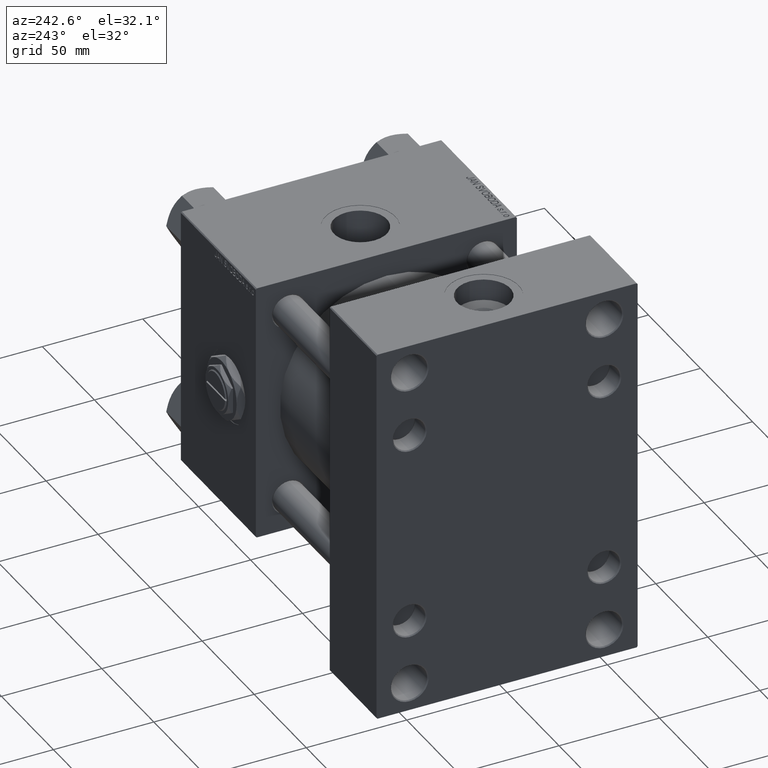
[diagram: clean part render]
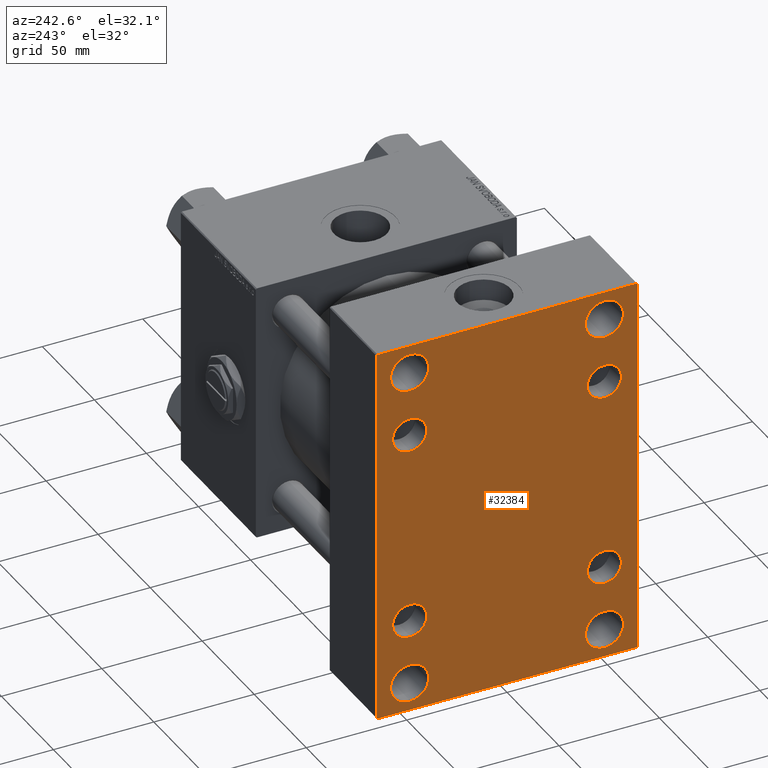
[diagram: same view with one face highlighted and labeled with its STEP entity id]
A machine part, auxiliary view. The second image highlights one B-rep face of the part: STEP entity #32384.
In plain terms, the highlighted planar face has unit normal (-1, 0, 0).
Its self-contained STEP definition (entity closure, byte-faithful):
#185 = CARTESIAN_POINT ( 'NONE',  ( 0.000000000000000000, 65.00000000000002842, 94.99999999999997158 ) ) ;
#363 = DIRECTION ( 'NONE',  ( 0.000000000000000000, 0.000000000000000000, 1.000000000000000000 ) ) ;
#489 = CIRCLE ( 'NONE', #26607, 9.499999999999980460 ) ;
#565 = ORIENTED_EDGE ( 'NONE', *, *, #20134, .T. ) ;
#930 = EDGE_CURVE ( 'NONE', #46478, #33347, #22520, .T. ) ;
#1027 = DIRECTION ( 'NONE',  ( 0.000000000000000000, 0.000000000000000000, 1.000000000000000000 ) ) ;
#1392 = ORIENTED_EDGE ( 'NONE', *, *, #19822, .T. ) ;
#1428 = EDGE_CURVE ( 'NONE', #36486, #1473, #40573, .T. ) ;
#1473 = VERTEX_POINT ( 'NONE', #28185 ) ;
#1508 = CIRCLE ( 'NONE', #15005, 9.499999999999980460 ) ;
#1533 = LINE ( 'NONE', #18171, #8628 ) ;
#1866 = CARTESIAN_POINT ( 'NONE',  ( 0.000000000000000000, 79.75000000000002842, -79.75000000000002842 ) ) ;
#1981 = VERTEX_POINT ( 'NONE', #20091 ) ;
#2018 = DIRECTION ( 'NONE',  ( 0.000000000000000000, 0.000000000000000000, 1.000000000000000000 ) ) ;
#3330 = AXIS2_PLACEMENT_3D ( 'NONE', #37043, #4813, #41006 ) ;
#3518 = DIRECTION ( 'NONE',  ( 0.000000000000000000, 0.000000000000000000, 1.000000000000000000 ) ) ;
#3522 = EDGE_CURVE ( 'NONE', #33347, #46478, #1508, .T. ) ;
#3664 = VECTOR ( 'NONE', #6599, 1000.000000000000114 ) ;
#3679 = DIRECTION ( 'NONE',  ( 0.000000000000000000, 0.7071067811865672237, -0.7071067811865279218 ) ) ;
#4051 = EDGE_CURVE ( 'NONE', #33290, #14034, #13338, .T. ) ;
#4495 = LINE ( 'NONE', #12951, #36708 ) ;
#4694 = AXIS2_PLACEMENT_3D ( 'NONE', #32401, #51734, #7606 ) ;
#4733 = FACE_BOUND ( 'NONE', #32193, .T. ) ;
#4813 = DIRECTION ( 'NONE',  ( 1.000000000000000000, -0.000000000000000000, 0.000000000000000000 ) ) ;
#5339 = CARTESIAN_POINT ( 'NONE',  ( 0.000000000000000000, -64.99999999999998579, 94.49999999999992895 ) ) ;
#5740 = DIRECTION ( 'NONE',  ( 0.000000000000000000, -1.000000000000000000, -4.270088556250601699E-16 ) ) ;
#5950 = DIRECTION ( 'NONE',  ( 1.000000000000000000, -0.000000000000000000, 0.000000000000000000 ) ) ;
#6024 = CIRCLE ( 'NONE', #19565, 9.499999999999980460 ) ;
#6330 = CARTESIAN_POINT ( 'NONE',  ( 0.000000000000000000, -48.50000000000000000, 81.00000000000000000 ) ) ;
#6355 = AXIS2_PLACEMENT_3D ( 'NONE', #23343, #44900, #12411 ) ;
#6599 = DIRECTION ( 'NONE',  ( -0.000000000000000000, -0.7071067811865474617, -0.7071067811865474617 ) ) ;
#6605 = CARTESIAN_POINT ( 'NONE',  ( 0.000000000000000000, -64.99999999999998579, -94.50000000000004263 ) ) ;
#6880 = DIRECTION ( 'NONE',  ( 0.000000000000000000, 0.000000000000000000, -1.000000000000000000 ) ) ;
#7292 = ORIENTED_EDGE ( 'NONE', *, *, #20575, .T. ) ;
#7606 = DIRECTION ( 'NONE',  ( 0.000000000000000000, 0.000000000000000000, 1.000000000000000000 ) ) ;
#7721 = CARTESIAN_POINT ( 'NONE',  ( 0.000000000000000000, 48.50000000000000000, -71.50000000000004263 ) ) ;
#8528 = DIRECTION ( 'NONE',  ( 0.000000000000000000, 0.000000000000000000, 1.000000000000000000 ) ) ;
#8604 = CIRCLE ( 'NONE', #48295, 8.499999999999980460 ) ;
#8628 = VECTOR ( 'NONE', #5740, 1000.000000000000000 ) ;
#8716 = FACE_BOUND ( 'NONE', #8766, .T. ) ;
#8766 = EDGE_LOOP ( 'NONE', ( #32055, #9139 ) ) ;
#9139 = ORIENTED_EDGE ( 'NONE', *, *, #33557, .T. ) ;
#9430 = EDGE_CURVE ( 'NONE', #39601, #43829, #48829, .T. ) ;
#10617 = CARTESIAN_POINT ( 'NONE',  ( 0.000000000000000000, -64.49999999999988631, -95.00000000000008527 ) ) ;
#10740 = ORIENTED_EDGE ( 'NONE', *, *, #36332, .T. ) ;
#11408 = CARTESIAN_POINT ( 'NONE',  ( 0.000000000000000000, -48.50000000000000000, -71.50000000000004263 ) ) ;
#11544 = AXIS2_PLACEMENT_3D ( 'NONE', #18550, #41784, #42567 ) ;
#11898 = EDGE_CURVE ( 'NONE', #29402, #31997, #26108, .T. ) ;
#12029 = VERTEX_POINT ( 'NONE', #38073 ) ;
#12198 = ORIENTED_EDGE ( 'NONE', *, *, #11898, .T. ) ;
#12411 = DIRECTION ( 'NONE',  ( -0.000000000000000000, 0.000000000000000000, 1.000000000000000000 ) ) ;
#12474 = ORIENTED_EDGE ( 'NONE', *, *, #20645, .T. ) ;
#12673 = CIRCLE ( 'NONE', #42194, 9.499999999999980460 ) ;
#12925 = PLANE ( 'NONE',  #6355 ) ;
#12945 = VERTEX_POINT ( 'NONE', #10617 ) ;
#12951 = CARTESIAN_POINT ( 'NONE',  ( 0.000000000000000000, 65.00000000000002842, 94.99999999999997158 ) ) ;
#13177 = CARTESIAN_POINT ( 'NONE',  ( 0.000000000000000000, -48.50000000000000000, 90.49999999999998579 ) ) ;
#13338 = CIRCLE ( 'NONE', #15893, 9.499999999999980460 ) ;
#13359 = DIRECTION ( 'NONE',  ( 0.000000000000000000, 0.000000000000000000, 1.000000000000000000 ) ) ;
#13674 = ORIENTED_EDGE ( 'NONE', *, *, #930, .T. ) ;
#13973 = VECTOR ( 'NONE', #3679, 1000.000000000000000 ) ;
#14034 = VERTEX_POINT ( 'NONE', #37410 ) ;
#14117 = ORIENTED_EDGE ( 'NONE', *, *, #17013, .T. ) ;
#14239 = CARTESIAN_POINT ( 'NONE',  ( 0.000000000000000000, 48.45000000000000995, -56.94999999999999574 ) ) ;
#14478 = AXIS2_PLACEMENT_3D ( 'NONE', #45949, #30857, #26904 ) ;
#15005 = AXIS2_PLACEMENT_3D ( 'NONE', #34128, #18822, #30172 ) ;
#15184 = ORIENTED_EDGE ( 'NONE', *, *, #16811, .F. ) ;
#15356 = AXIS2_PLACEMENT_3D ( 'NONE', #24387, #20427, #8528 ) ;
#15401 = FACE_BOUND ( 'NONE', #41085, .T. ) ;
#15427 = VECTOR ( 'NONE', #23919, 1000.000000000000000 ) ;
#15893 = AXIS2_PLACEMENT_3D ( 'NONE', #36672, #16878, #1027 ) ;
#16466 = DIRECTION ( 'NONE',  ( 1.000000000000000000, -0.000000000000000000, 0.000000000000000000 ) ) ;
#16811 = EDGE_CURVE ( 'NONE', #22195, #48666, #47860, .T. ) ;
#16878 = DIRECTION ( 'NONE',  ( 1.000000000000000000, -0.000000000000000000, 0.000000000000000000 ) ) ;
#17013 = EDGE_CURVE ( 'NONE', #37407, #1981, #12673, .T. ) ;
#17476 = AXIS2_PLACEMENT_3D ( 'NONE', #6330, #30116, #22456 ) ;
#17605 = CARTESIAN_POINT ( 'NONE',  ( 0.000000000000000000, 48.45000000000000995, -48.45000000000001705 ) ) ;
#17807 = VERTEX_POINT ( 'NONE', #40173 ) ;
#18171 = CARTESIAN_POINT ( 'NONE',  ( 0.000000000000000000, 65.00000000000002842, -95.00000000000002842 ) ) ;
#18550 = CARTESIAN_POINT ( 'NONE',  ( 0.000000000000000000, 48.50000000000000000, -81.00000000000001421 ) ) ;
#18822 = DIRECTION ( 'NONE',  ( 1.000000000000000000, -0.000000000000000000, 0.000000000000000000 ) ) ;
#19396 = CARTESIAN_POINT ( 'NONE',  ( 0.000000000000000000, -48.44999999999999574, -48.45000000000003126 ) ) ;
#19565 = AXIS2_PLACEMENT_3D ( 'NONE', #30277, #21841, #2018 ) ;
#19658 = DIRECTION ( 'NONE',  ( 1.000000000000000000, -0.000000000000000000, 0.000000000000000000 ) ) ;
#19822 = EDGE_CURVE ( 'NONE', #12945, #48666, #32740, .T. ) ;
#19931 = EDGE_CURVE ( 'NONE', #32847, #17807, #45713, .T. ) ;
#20016 = VECTOR ( 'NONE', #24233, 1000.000000000000000 ) ;
#20091 = CARTESIAN_POINT ( 'NONE',  ( 0.000000000000000000, 48.50000000000000000, -90.50000000000000000 ) ) ;
#20134 = EDGE_CURVE ( 'NONE', #50395, #22084, #6024, .T. ) ;
#20427 = DIRECTION ( 'NONE',  ( 1.000000000000000000, -0.000000000000000000, 0.000000000000000000 ) ) ;
#20575 = EDGE_CURVE ( 'NONE', #17807, #32847, #8604, .T. ) ;
#20645 = EDGE_CURVE ( 'NONE', #43829, #39601, #32238, .T. ) ;
#20857 = CARTESIAN_POINT ( 'NONE',  ( 0.000000000000000000, 48.45000000000000995, 39.95000000000003126 ) ) ;
#20869 = FACE_BOUND ( 'NONE', #34976, .T. ) ;
#21479 = CARTESIAN_POINT ( 'NONE',  ( 0.000000000000000000, -48.50000000000000000, 71.50000000000002842 ) ) ;
#21841 = DIRECTION ( 'NONE',  ( 1.000000000000000000, -0.000000000000000000, 0.000000000000000000 ) ) ;
#22084 = VERTEX_POINT ( 'NONE', #39464 ) ;
#22195 = VERTEX_POINT ( 'NONE', #5339 ) ;
#22456 = DIRECTION ( 'NONE',  ( 0.000000000000000000, 0.000000000000000000, 1.000000000000000000 ) ) ;
#22520 = CIRCLE ( 'NONE', #17476, 9.499999999999980460 ) ;
#22977 = CARTESIAN_POINT ( 'NONE',  ( 0.000000000000000000, 79.74999999999818101, 79.75000000000261480 ) ) ;
#23077 = DIRECTION ( 'NONE',  ( 0.000000000000000000, 0.000000000000000000, 1.000000000000000000 ) ) ;
#23343 = CARTESIAN_POINT ( 'NONE',  ( 0.000000000000000000, 0.000000000000000000, 0.000000000000000000 ) ) ;
#23891 = CARTESIAN_POINT ( 'NONE',  ( 0.000000000000000000, -48.44999999999999574, 48.45000000000003126 ) ) ;
#23917 = AXIS2_PLACEMENT_3D ( 'NONE', #17605, #5950, #36888 ) ;
#23919 = DIRECTION ( 'NONE',  ( -0.000000000000000000, 0.7071067811865573427, 0.7071067811865378028 ) ) ;
#24233 = DIRECTION ( 'NONE',  ( 0.000000000000000000, -1.000000000000000000, -1.067522139062650425E-16 ) ) ;
#24387 = CARTESIAN_POINT ( 'NONE',  ( 0.000000000000000000, 48.45000000000000995, 48.45000000000001705 ) ) ;
#24467 = EDGE_CURVE ( 'NONE', #27285, #12029, #45986, .T. ) ;
#25161 = ORIENTED_EDGE ( 'NONE', *, *, #19931, .T. ) ;
#25243 = EDGE_LOOP ( 'NONE', ( #49395, #13674 ) ) ;
#25319 = VECTOR ( 'NONE', #6880, 1000.000000000000000 ) ;
#25349 = DIRECTION ( 'NONE',  ( 0.000000000000000000, -0.7071067811865867636, 0.7071067811865081598 ) ) ;
#25995 = CARTESIAN_POINT ( 'NONE',  ( 0.000000000000000000, -48.44999999999999574, 56.95000000000000995 ) ) ;
#26024 = AXIS2_PLACEMENT_3D ( 'NONE', #43686, #34947, #3518 ) ;
#26077 = ORIENTED_EDGE ( 'NONE', *, *, #26666, .T. ) ;
#26108 = CIRCLE ( 'NONE', #3330, 8.499999999999980460 ) ;
#26310 = CARTESIAN_POINT ( 'NONE',  ( 0.000000000000000000, -48.44999999999999574, -39.95000000000004547 ) ) ;
#26423 = ORIENTED_EDGE ( 'NONE', *, *, #36684, .T. ) ;
#26607 = AXIS2_PLACEMENT_3D ( 'NONE', #44102, #29021, #13359 ) ;
#26666 = EDGE_CURVE ( 'NONE', #22195, #1473, #45018, .T. ) ;
#26904 = DIRECTION ( 'NONE',  ( 0.000000000000000000, 0.000000000000000000, 1.000000000000000000 ) ) ;
#27285 = VERTEX_POINT ( 'NONE', #32470 ) ;
#27291 = FACE_BOUND ( 'NONE', #36685, .T. ) ;
#27375 = EDGE_LOOP ( 'NONE', ( #48981, #33679, #26423, #1392, #15184, #26077, #48078, #47828 ) ) ;
#27564 = FACE_BOUND ( 'NONE', #46357, .T. ) ;
#28042 = EDGE_CURVE ( 'NONE', #22084, #50395, #44987, .T. ) ;
#28185 = CARTESIAN_POINT ( 'NONE',  ( 0.000000000000000000, -64.49999999999994316, 94.99999999999995737 ) ) ;
#28273 = CARTESIAN_POINT ( 'NONE',  ( 0.000000000000000000, 48.50000000000000000, -81.00000000000001421 ) ) ;
#28689 = VERTEX_POINT ( 'NONE', #25995 ) ;
#29021 = DIRECTION ( 'NONE',  ( 1.000000000000000000, -0.000000000000000000, 0.000000000000000000 ) ) ;
#29094 = VERTEX_POINT ( 'NONE', #34109 ) ;
#29402 = VERTEX_POINT ( 'NONE', #14239 ) ;
#30116 = DIRECTION ( 'NONE',  ( 1.000000000000000000, -0.000000000000000000, 0.000000000000000000 ) ) ;
#30172 = DIRECTION ( 'NONE',  ( 0.000000000000000000, 0.000000000000000000, 1.000000000000000000 ) ) ;
#30277 = CARTESIAN_POINT ( 'NONE',  ( 0.000000000000000000, -48.50000000000000000, -81.00000000000001421 ) ) ;
#30857 = DIRECTION ( 'NONE',  ( 1.000000000000000000, -0.000000000000000000, 0.000000000000000000 ) ) ;
#31508 = FACE_BOUND ( 'NONE', #25243, .T. ) ;
#31572 = CARTESIAN_POINT ( 'NONE',  ( 0.000000000000000000, 48.45000000000000995, -39.95000000000003126 ) ) ;
#31997 = VERTEX_POINT ( 'NONE', #31572 ) ;
#32055 = ORIENTED_EDGE ( 'NONE', *, *, #45518, .T. ) ;
#32193 = EDGE_LOOP ( 'NONE', ( #565, #44287 ) ) ;
#32238 = CIRCLE ( 'NONE', #15356, 8.499999999999980460 ) ;
#32384 = ADVANCED_FACE ( 'NONE', ( #20869, #31508, #4733, #27291, #8716, #27564, #43405, #15401, #47379 ), #12925, .T. ) ;
#32401 = CARTESIAN_POINT ( 'NONE',  ( 0.000000000000000000, -48.44999999999999574, 48.45000000000003126 ) ) ;
#32470 = CARTESIAN_POINT ( 'NONE',  ( 0.000000000000000000, 65.00000000000002842, -94.50000000000002842 ) ) ;
#32480 = DIRECTION ( 'NONE',  ( 0.000000000000000000, 0.000000000000000000, 1.000000000000000000 ) ) ;
#32543 = DIRECTION ( 'NONE',  ( 0.000000000000000000, 0.000000000000000000, 1.000000000000000000 ) ) ;
#32740 = LINE ( 'NONE', #44903, #37253 ) ;
#32847 = VERTEX_POINT ( 'NONE', #26310 ) ;
#33290 = VERTEX_POINT ( 'NONE', #49133 ) ;
#33347 = VERTEX_POINT ( 'NONE', #13177 ) ;
#33557 = EDGE_CURVE ( 'NONE', #29094, #28689, #49450, .T. ) ;
#33679 = ORIENTED_EDGE ( 'NONE', *, *, #24467, .T. ) ;
#34109 = CARTESIAN_POINT ( 'NONE',  ( 0.000000000000000000, -48.44999999999999574, 39.95000000000004547 ) ) ;
#34128 = CARTESIAN_POINT ( 'NONE',  ( 0.000000000000000000, -48.50000000000000000, 81.00000000000000000 ) ) ;
#34947 = DIRECTION ( 'NONE',  ( 1.000000000000000000, -0.000000000000000000, 0.000000000000000000 ) ) ;
#34976 = EDGE_LOOP ( 'NONE', ( #50827, #48480 ) ) ;
#35735 = CARTESIAN_POINT ( 'NONE',  ( 0.000000000000000000, -48.50000000000000000, -81.00000000000001421 ) ) ;
#36332 = EDGE_CURVE ( 'NONE', #1981, #37407, #45292, .T. ) ;
#36486 = VERTEX_POINT ( 'NONE', #39069 ) ;
#36672 = CARTESIAN_POINT ( 'NONE',  ( 0.000000000000000000, 48.50000000000000000, 81.00000000000000000 ) ) ;
#36684 = EDGE_CURVE ( 'NONE', #12029, #12945, #1533, .T. ) ;
#36685 = EDGE_LOOP ( 'NONE', ( #14117, #10740 ) ) ;
#36708 = VECTOR ( 'NONE', #45192, 1000.000000000000000 ) ;
#36785 = AXIS2_PLACEMENT_3D ( 'NONE', #23891, #16466, #363 ) ;
#36888 = DIRECTION ( 'NONE',  ( 0.000000000000000000, 0.000000000000000000, 1.000000000000000000 ) ) ;
#37043 = CARTESIAN_POINT ( 'NONE',  ( 0.000000000000000000, 48.45000000000000995, -48.45000000000001705 ) ) ;
#37253 = VECTOR ( 'NONE', #25349, 1000.000000000000000 ) ;
#37407 = VERTEX_POINT ( 'NONE', #7721 ) ;
#37410 = CARTESIAN_POINT ( 'NONE',  ( 0.000000000000000000, 48.50000000000000000, 90.49999999999998579 ) ) ;
#37786 = ORIENTED_EDGE ( 'NONE', *, *, #39957, .T. ) ;
#38073 = CARTESIAN_POINT ( 'NONE',  ( 0.000000000000000000, 64.50000000000002842, -95.00000000000002842 ) ) ;
#38688 = VERTEX_POINT ( 'NONE', #52001 ) ;
#39069 = CARTESIAN_POINT ( 'NONE',  ( 0.000000000000000000, 64.50000000000000000, 94.99999999999997158 ) ) ;
#39314 = CIRCLE ( 'NONE', #36785, 8.499999999999980460 ) ;
#39464 = CARTESIAN_POINT ( 'NONE',  ( 0.000000000000000000, -48.50000000000000000, -90.50000000000000000 ) ) ;
#39601 = VERTEX_POINT ( 'NONE', #20857 ) ;
#39957 = EDGE_CURVE ( 'NONE', #31997, #29402, #46676, .T. ) ;
#40173 = CARTESIAN_POINT ( 'NONE',  ( 0.000000000000000000, -48.44999999999999574, -56.95000000000000995 ) ) ;
#40573 = LINE ( 'NONE', #185, #20016 ) ;
#40640 = ORIENTED_EDGE ( 'NONE', *, *, #9430, .T. ) ;
#41006 = DIRECTION ( 'NONE',  ( 0.000000000000000000, 0.000000000000000000, 1.000000000000000000 ) ) ;
#41085 = EDGE_LOOP ( 'NONE', ( #12474, #40640 ) ) ;
#41784 = DIRECTION ( 'NONE',  ( 1.000000000000000000, -0.000000000000000000, 0.000000000000000000 ) ) ;
#42194 = AXIS2_PLACEMENT_3D ( 'NONE', #28273, #44397, #32480 ) ;
#42567 = DIRECTION ( 'NONE',  ( 0.000000000000000000, 0.000000000000000000, 1.000000000000000000 ) ) ;
#43084 = CARTESIAN_POINT ( 'NONE',  ( 0.000000000000000000, -64.99999999999998579, 94.99999999999995737 ) ) ;
#43294 = AXIS2_PLACEMENT_3D ( 'NONE', #35735, #44451, #32543 ) ;
#43405 = FACE_BOUND ( 'NONE', #46723, .T. ) ;
#43513 = EDGE_CURVE ( 'NONE', #38688, #27285, #4495, .T. ) ;
#43686 = CARTESIAN_POINT ( 'NONE',  ( 0.000000000000000000, 48.45000000000000995, 48.45000000000001705 ) ) ;
#43829 = VERTEX_POINT ( 'NONE', #49287 ) ;
#44102 = CARTESIAN_POINT ( 'NONE',  ( 0.000000000000000000, 48.50000000000000000, 81.00000000000000000 ) ) ;
#44287 = ORIENTED_EDGE ( 'NONE', *, *, #28042, .T. ) ;
#44310 = EDGE_CURVE ( 'NONE', #36486, #38688, #47825, .T. ) ;
#44397 = DIRECTION ( 'NONE',  ( 1.000000000000000000, -0.000000000000000000, 0.000000000000000000 ) ) ;
#44451 = DIRECTION ( 'NONE',  ( 1.000000000000000000, -0.000000000000000000, 0.000000000000000000 ) ) ;
#44481 = EDGE_CURVE ( 'NONE', #14034, #33290, #489, .T. ) ;
#44900 = DIRECTION ( 'NONE',  ( -1.000000000000000000, 0.000000000000000000, -0.000000000000000000 ) ) ;
#44903 = CARTESIAN_POINT ( 'NONE',  ( 0.000000000000000000, -79.74999999999639044, -79.75000000000524381 ) ) ;
#44987 = CIRCLE ( 'NONE', #43294, 9.499999999999980460 ) ;
#45018 = LINE ( 'NONE', #52182, #15427 ) ;
#45192 = DIRECTION ( 'NONE',  ( 0.000000000000000000, 0.000000000000000000, -1.000000000000000000 ) ) ;
#45292 = CIRCLE ( 'NONE', #11544, 9.499999999999980460 ) ;
#45518 = EDGE_CURVE ( 'NONE', #28689, #29094, #39314, .T. ) ;
#45713 = CIRCLE ( 'NONE', #14478, 8.499999999999980460 ) ;
#45949 = CARTESIAN_POINT ( 'NONE',  ( 0.000000000000000000, -48.44999999999999574, -48.45000000000003126 ) ) ;
#45986 = LINE ( 'NONE', #1866, #3664 ) ;
#46357 = EDGE_LOOP ( 'NONE', ( #25161, #7292 ) ) ;
#46478 = VERTEX_POINT ( 'NONE', #21479 ) ;
#46676 = CIRCLE ( 'NONE', #23917, 8.499999999999980460 ) ;
#46723 = EDGE_LOOP ( 'NONE', ( #37786, #12198 ) ) ;
#47379 = FACE_OUTER_BOUND ( 'NONE', #27375, .T. ) ;
#47825 = LINE ( 'NONE', #22977, #13973 ) ;
#47828 = ORIENTED_EDGE ( 'NONE', *, *, #44310, .T. ) ;
#47860 = LINE ( 'NONE', #43084, #25319 ) ;
#48078 = ORIENTED_EDGE ( 'NONE', *, *, #1428, .F. ) ;
#48295 = AXIS2_PLACEMENT_3D ( 'NONE', #19396, #19658, #23077 ) ;
#48480 = ORIENTED_EDGE ( 'NONE', *, *, #4051, .T. ) ;
#48666 = VERTEX_POINT ( 'NONE', #6605 ) ;
#48829 = CIRCLE ( 'NONE', #26024, 8.499999999999980460 ) ;
#48981 = ORIENTED_EDGE ( 'NONE', *, *, #43513, .T. ) ;
#49133 = CARTESIAN_POINT ( 'NONE',  ( 0.000000000000000000, 48.50000000000000000, 71.50000000000002842 ) ) ;
#49287 = CARTESIAN_POINT ( 'NONE',  ( 0.000000000000000000, 48.45000000000000995, 56.94999999999999574 ) ) ;
#49395 = ORIENTED_EDGE ( 'NONE', *, *, #3522, .T. ) ;
#49450 = CIRCLE ( 'NONE', #4694, 8.499999999999980460 ) ;
#50395 = VERTEX_POINT ( 'NONE', #11408 ) ;
#50827 = ORIENTED_EDGE ( 'NONE', *, *, #44481, .T. ) ;
#51734 = DIRECTION ( 'NONE',  ( 1.000000000000000000, -0.000000000000000000, 0.000000000000000000 ) ) ;
#52001 = CARTESIAN_POINT ( 'NONE',  ( 0.000000000000000000, 65.00000000000002842, 94.49999999999997158 ) ) ;
#52182 = CARTESIAN_POINT ( 'NONE',  ( -0.000000000000000000, -79.74999999999906208, 79.75000000000126477 ) ) ;